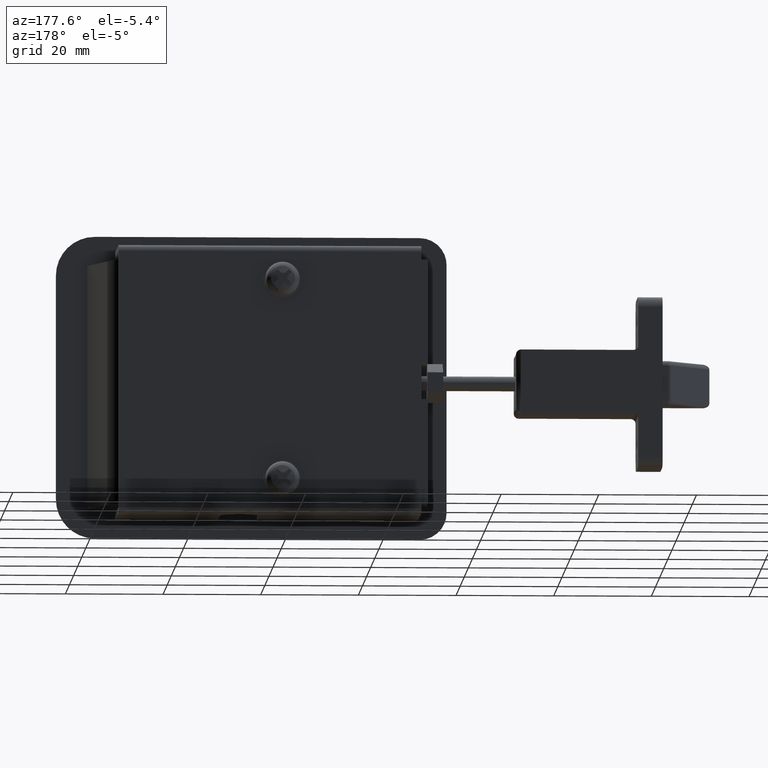
[diagram: clean part render]
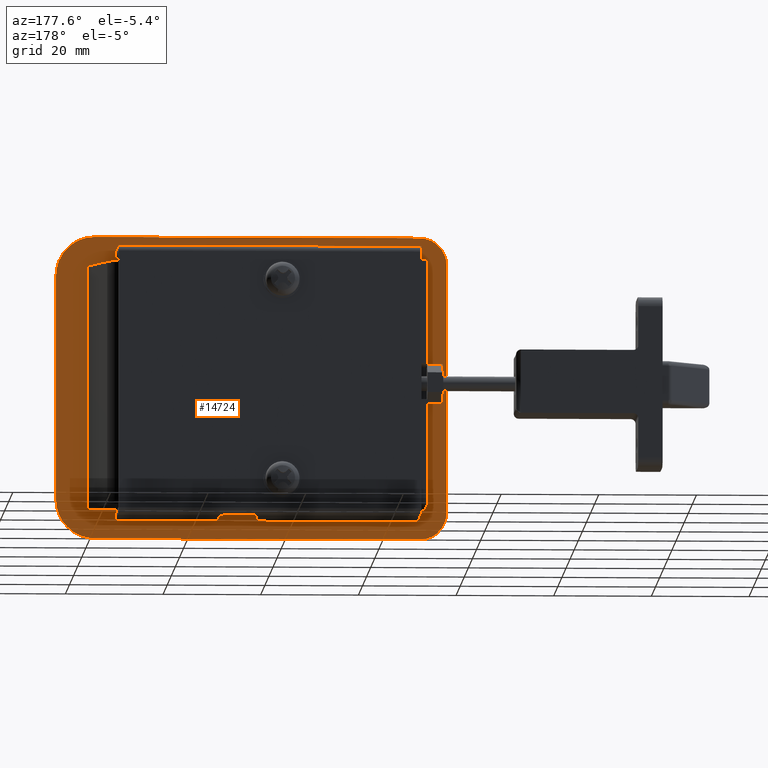
[diagram: same view with one face highlighted and labeled with its STEP entity id]
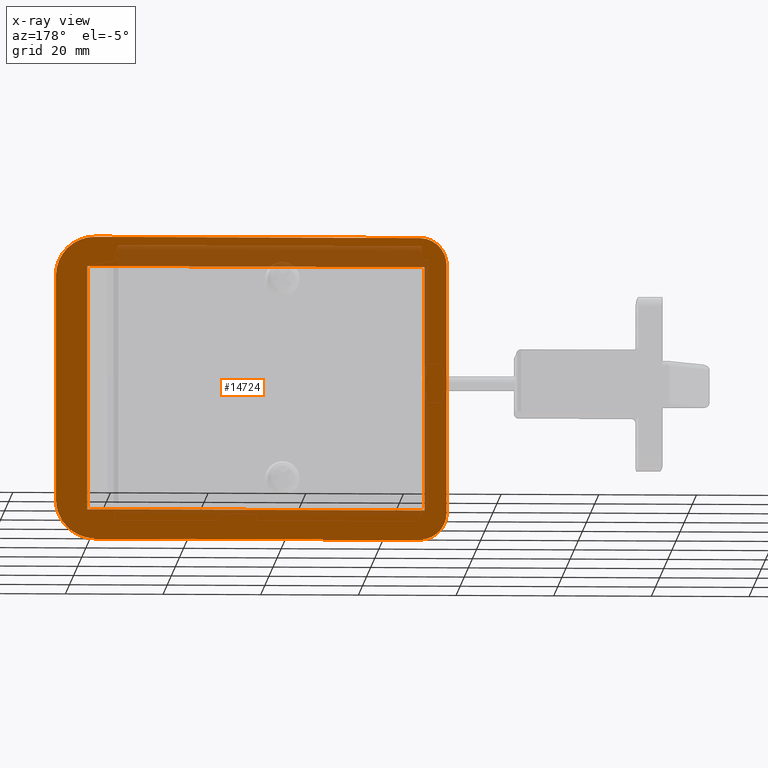
[diagram: x-ray of the same camera — body ghosted, the highlighted face saturated]
A machine part, auxiliary view. The second image highlights one B-rep face of the part: STEP entity #14724.
The next image is the same camera in x-ray: the body ghosted, the highlighted face saturated — about 25% of this face is hidden behind the body in this view.
In plain terms, the highlighted face is a freeform B-spline surface patch.
Its self-contained STEP definition (entity closure, byte-faithful):
#12096=CARTESIAN_POINT('',(58.0,-3.250000000000000,-31.0));
#12097=VERTEX_POINT('',#12096);
#12098=CARTESIAN_POINT('',(66.0,-3.250000000000000,-23.0));
#12099=VERTEX_POINT('',#12098);
#12100=CARTESIAN_POINT('',(58.0,-3.250000000000000,-31.0));
#12101=CARTESIAN_POINT('',(58.719964093939787,-3.249999999999997,-31.000244659719510));
#12102=CARTESIAN_POINT('',(59.963391631267243,-3.250000000000004,-30.830955641775869));
#12103=CARTESIAN_POINT('',(61.558731768190732,-3.249999999999997,-30.215507169718919));
#12104=CARTESIAN_POINT('',(62.845046046656293,-3.250000000000006,-29.422893193959599));
#12105=CARTESIAN_POINT('',(64.014555508449732,-3.249999999999997,-28.362963258557340));
#12106=CARTESIAN_POINT('',(65.094871602029315,-3.250000000000010,-26.868734262729149));
#12107=CARTESIAN_POINT('',(65.830470347026122,-3.249999999999977,-25.028915811185410));
#12108=CARTESIAN_POINT('',(66.000136167968577,-3.250000000000019,-23.654485567002482));
#12109=CARTESIAN_POINT('',(66.0,-3.250000000000000,-23.0));
#12110=B_SPLINE_CURVE_WITH_KNOTS('',3,(#12100,#12101,#12102,#12103,#12104,#12105,#12106,#12107,#12108,#12109),.UNSPECIFIED.,.F.,.U.,(4,1,1,1,1,1,1,4),(0.000000217640221,2.159879854948253,3.730759305571370,5.105279209810860,6.676015110335455,8.443202474281334,10.603192205327030,12.566685954680869),.UNSPECIFIED.);
#12111=EDGE_CURVE('',#12097,#12099,#12110,.T.);
#12228=CARTESIAN_POINT('',(-14.000000000061060,-3.250012351372815,-25.500000000000000));
#12229=VERTEX_POINT('',#12228);
#12238=CARTESIAN_POINT('',(-8.500000000000000,-3.249999999999965,-31.0));
#12239=VERTEX_POINT('',#12238);
#12240=CARTESIAN_POINT('',(-8.500000000000000,-3.249999999999965,-31.0));
#12241=CARTESIAN_POINT('',(-9.175068567680937,-3.250000757281994,-31.000641342362488));
#12242=CARTESIAN_POINT('',(-10.164491435753931,-3.250002076308830,-30.815353040896120));
#12243=CARTESIAN_POINT('',(-11.585183562544600,-3.250004449958615,-30.122098196376310));
#12244=CARTESIAN_POINT('',(-12.561377921169591,-3.250006468440379,-29.300654358172501));
#12245=CARTESIAN_POINT('',(-13.420641325125160,-3.250008803160298,-28.080641280835451));
#12246=CARTESIAN_POINT('',(-13.895308205106820,-3.250010718036486,-26.849939998844128));
#12247=CARTESIAN_POINT('',(-14.000041480677041,-3.250011896708263,-25.904960846801501));
#12248=CARTESIAN_POINT('',(-14.000000000061060,-3.250012351372815,-25.500000000000000));
#12249=B_SPLINE_CURVE_WITH_KNOTS('',3,(#12240,#12241,#12242,#12243,#12244,#12245,#12246,#12247,#12248),.UNSPECIFIED.,.F.,.U.,(4,1,1,1,1,1,4),(0.000000571226337,2.024899060823256,2.969874206136632,4.724678616649729,5.804688432410554,7.424672308863371,8.639596593956394),.UNSPECIFIED.);
#12250=EDGE_CURVE('',#12239,#12229,#12249,.T.);
#12353=CARTESIAN_POINT('',(58.0,-3.250000000000000,31.0));
#12354=VERTEX_POINT('',#12353);
#12355=CARTESIAN_POINT('',(66.0,-3.250000000000000,23.0));
#12356=VERTEX_POINT('',#12355);
#12357=CARTESIAN_POINT('',(58.0,-3.250000000000000,31.0));
#12358=CARTESIAN_POINT('',(58.719964093939787,-3.249999999999997,31.000244659719510));
#12359=CARTESIAN_POINT('',(59.963391631267243,-3.250000000000004,30.830955641775869));
#12360=CARTESIAN_POINT('',(61.558731768190732,-3.249999999999997,30.215507169718919));
#12361=CARTESIAN_POINT('',(62.845046046656293,-3.250000000000006,29.422893193959599));
#12362=CARTESIAN_POINT('',(64.014555508449732,-3.249999999999997,28.362963258557340));
#12363=CARTESIAN_POINT('',(65.094871602029315,-3.250000000000010,26.868734262729149));
#12364=CARTESIAN_POINT('',(65.830470347026122,-3.249999999999977,25.028915811185410));
#12365=CARTESIAN_POINT('',(66.000136167968577,-3.250000000000019,23.654485567002482));
#12366=CARTESIAN_POINT('',(66.0,-3.250000000000000,23.0));
#12367=B_SPLINE_CURVE_WITH_KNOTS('',3,(#12357,#12358,#12359,#12360,#12361,#12362,#12363,#12364,#12365,#12366),.UNSPECIFIED.,.F.,.U.,(4,1,1,1,1,1,1,4),(0.000000217640221,2.159879854948253,3.730759305571370,5.105279209810860,6.676015110335455,8.443202474281334,10.603192205327030,12.566685954680869),.UNSPECIFIED.);
#12368=EDGE_CURVE('',#12354,#12356,#12367,.T.);
#12485=CARTESIAN_POINT('',(-8.500000000000000,-3.249999999999965,31.0));
#12486=VERTEX_POINT('',#12485);
#12495=CARTESIAN_POINT('',(-14.000000000061020,-3.250012351372800,25.500000000000000));
#12496=VERTEX_POINT('',#12495);
#12497=CARTESIAN_POINT('',(-8.500000000000000,-3.249999999999965,31.0));
#12498=CARTESIAN_POINT('',(-9.084976537021639,-3.250000656506454,31.000298912318261));
#12499=CARTESIAN_POINT('',(-10.299794826461870,-3.250002240456827,30.804468002921109));
#12500=CARTESIAN_POINT('',(-11.789888180158091,-3.250004807652866,30.008244132568318));
#12501=CARTESIAN_POINT('',(-12.815479498262491,-3.250007111588702,28.981974952545411));
#12502=CARTESIAN_POINT('',(-13.492833990250411,-3.250009073111080,27.912418676875621));
#12503=CARTESIAN_POINT('',(-13.905220357417690,-3.250010830251669,26.759914496985179));
#12504=CARTESIAN_POINT('',(-14.000055056237899,-3.250011896721339,25.904962769422241));
#12505=CARTESIAN_POINT('',(-14.000000000061020,-3.250012351372800,25.500000000000000));
#12506=B_SPLINE_CURVE_WITH_KNOTS('',3,(#12497,#12498,#12499,#12500,#12501,#12502,#12503,#12504,#12505),.UNSPECIFIED.,.F.,.U.,(4,1,1,1,1,1,4),(0.000000571223937,1.754917886721847,3.644833902363503,4.994753502327297,6.074702085233202,7.424672308863355,8.639596593956357),.UNSPECIFIED.);
#12507=EDGE_CURVE('',#12486,#12496,#12506,.T.);
#14488=CARTESIAN_POINT('',(-9.500000000000000,-3.250000000000000,25.0));
#14489=VERTEX_POINT('',#14488);
#14495=CARTESIAN_POINT('',(59.568000000000012,-3.250000000000000,25.0));
#14496=VERTEX_POINT('',#14495);
#14497=CARTESIAN_POINT('',(59.568000000000012,-3.250000000000000,25.0));
#14498=CARTESIAN_POINT('',(-9.500000000000000,-3.250000000000000,25.0));
#14499=QUASI_UNIFORM_CURVE('',1,(#14497,#14498),.UNSPECIFIED.,.F.,.U.);
#14500=EDGE_CURVE('',#14496,#14489,#14499,.T.);
#14564=CARTESIAN_POINT('',(59.568000000000012,-3.250000000000000,-25.0));
#14565=VERTEX_POINT('',#14564);
#14571=CARTESIAN_POINT('',(-9.500000000000000,-3.250000000000000,-25.0));
#14572=VERTEX_POINT('',#14571);
#14573=CARTESIAN_POINT('',(59.568000000000012,-3.250000000000000,-25.0));
#14574=CARTESIAN_POINT('',(-9.500000000000000,-3.250000000000000,-25.0));
#14575=QUASI_UNIFORM_CURVE('',1,(#14573,#14574),.UNSPECIFIED.,.F.,.U.);
#14576=EDGE_CURVE('',#14565,#14572,#14575,.T.);
#14615=CARTESIAN_POINT('',(-9.500000000000000,-3.250000000000000,-25.0));
#14616=CARTESIAN_POINT('',(-9.500000000000000,-3.250000000000000,25.0));
#14617=QUASI_UNIFORM_CURVE('',1,(#14615,#14616),.UNSPECIFIED.,.F.,.U.);
#14618=EDGE_CURVE('',#14572,#14489,#14617,.T.);
#14648=CARTESIAN_POINT('',(59.568000000000012,-3.250000000000000,-25.0));
#14649=CARTESIAN_POINT('',(59.568000000000012,-3.250000000000000,25.0));
#14650=QUASI_UNIFORM_CURVE('',1,(#14648,#14649),.UNSPECIFIED.,.F.,.U.);
#14651=EDGE_CURVE('',#14565,#14496,#14650,.T.);
#14687=CARTESIAN_POINT('',(-17.995999845008591,-3.250000000000000,-34.096899879831973));
#14688=CARTESIAN_POINT('',(-17.995999845008591,-3.250000000000000,34.096901542801547));
#14689=CARTESIAN_POINT('',(69.996001990714745,-3.250000000000000,-34.096899879831973));
#14690=CARTESIAN_POINT('',(69.996001990714745,-3.250000000000000,34.096901542801547));
#14691=B_SPLINE_SURFACE_WITH_KNOTS('',1,1,((#14687,#14689),(#14688,#14690)),.UNSPECIFIED.,.F.,.F.,.U.,(2,2),(2,2),(0.0,68.193801422633527),(0.0,87.992001835723329),.UNSPECIFIED.);
#14692=ORIENTED_EDGE('',*,*,#12111,.F.);
#14693=CARTESIAN_POINT('',(58.0,-3.250000000000000,-31.0));
#14694=CARTESIAN_POINT('',(-8.500000000000000,-3.249999999999965,-31.0));
#14695=QUASI_UNIFORM_CURVE('',1,(#14693,#14694),.UNSPECIFIED.,.F.,.U.);
#14696=EDGE_CURVE('',#12097,#12239,#14695,.T.);
#14697=ORIENTED_EDGE('',*,*,#14696,.T.);
#14698=ORIENTED_EDGE('',*,*,#12250,.T.);
#14699=CARTESIAN_POINT('',(-14.000000000061060,-3.250012351372815,-25.500000000000000));
#14700=CARTESIAN_POINT('',(-14.000000000061020,-3.250012351372800,25.500000000000000));
#14701=QUASI_UNIFORM_CURVE('',1,(#14699,#14700),.UNSPECIFIED.,.F.,.U.);
#14702=EDGE_CURVE('',#12229,#12496,#14701,.T.);
#14703=ORIENTED_EDGE('',*,*,#14702,.T.);
#14704=ORIENTED_EDGE('',*,*,#12507,.F.);
#14705=CARTESIAN_POINT('',(58.0,-3.250000000000000,31.0));
#14706=CARTESIAN_POINT('',(-8.500000000000000,-3.249999999999965,31.0));
#14707=QUASI_UNIFORM_CURVE('',1,(#14705,#14706),.UNSPECIFIED.,.F.,.U.);
#14708=EDGE_CURVE('',#12354,#12486,#14707,.T.);
#14709=ORIENTED_EDGE('',*,*,#14708,.F.);
#14710=ORIENTED_EDGE('',*,*,#12368,.T.);
#14711=CARTESIAN_POINT('',(66.0,-3.250000000000000,-23.0));
#14712=CARTESIAN_POINT('',(66.0,-3.250000000000000,23.0));
#14713=QUASI_UNIFORM_CURVE('',1,(#14711,#14712),.UNSPECIFIED.,.F.,.U.);
#14714=EDGE_CURVE('',#12099,#12356,#14713,.T.);
#14715=ORIENTED_EDGE('',*,*,#14714,.F.);
#14716=EDGE_LOOP('',(#14692,#14697,#14698,#14703,#14704,#14709,#14710,#14715));
#14717=FACE_OUTER_BOUND('',#14716,.T.);
#14718=ORIENTED_EDGE('',*,*,#14618,.F.);
#14719=ORIENTED_EDGE('',*,*,#14576,.F.);
#14720=ORIENTED_EDGE('',*,*,#14651,.T.);
#14721=ORIENTED_EDGE('',*,*,#14500,.T.);
#14722=EDGE_LOOP('',(#14718,#14719,#14720,#14721));
#14723=FACE_BOUND('',#14722,.T.);
#14724=ADVANCED_FACE('',(#14717,#14723),#14691,.T.);